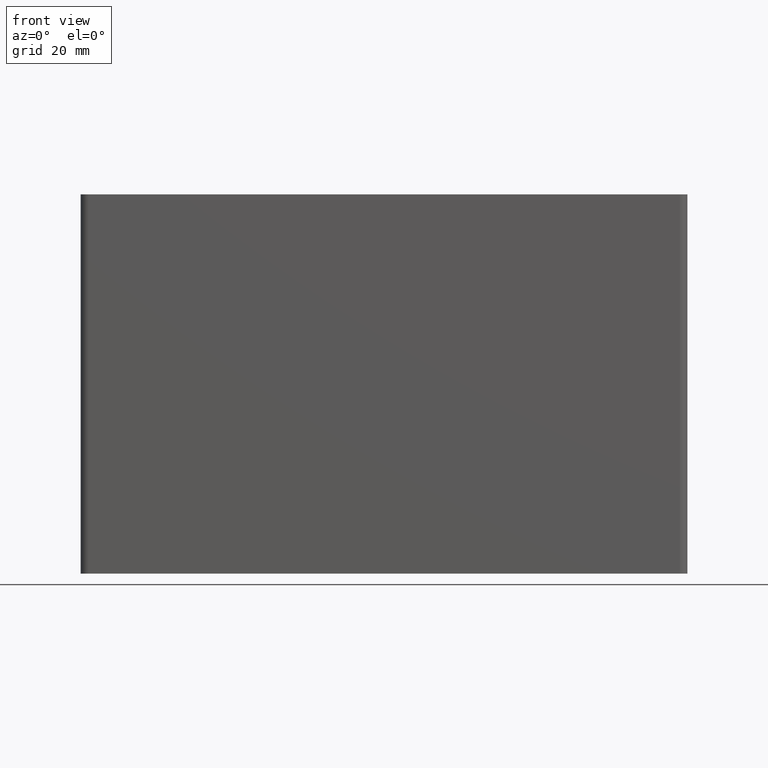
[diagram: clean part render]
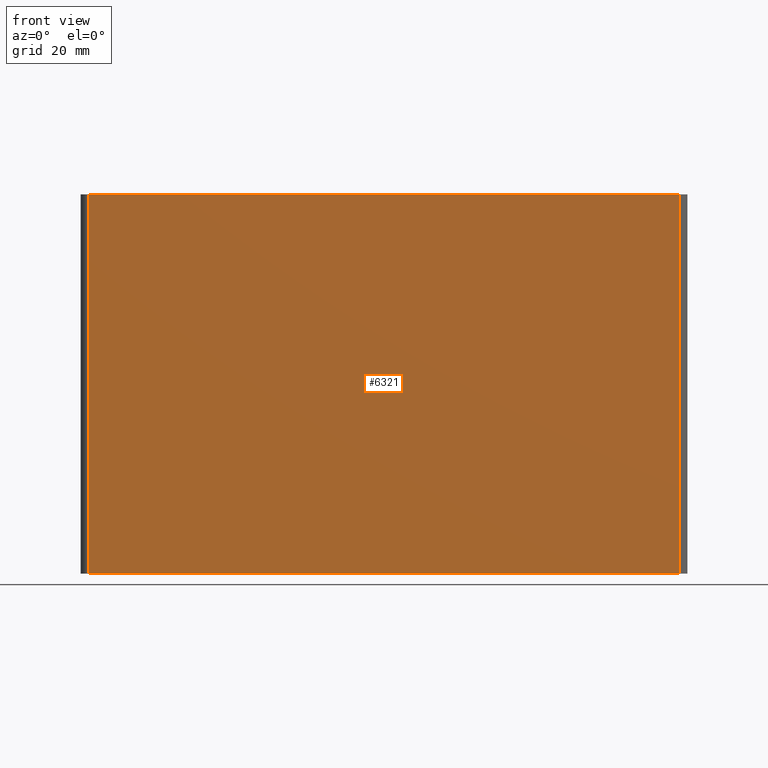
[diagram: same view with one face highlighted and labeled with its STEP entity id]
A machine part, front view. The second image highlights one B-rep face of the part: STEP entity #6321.
In plain terms, the highlighted planar face has unit normal (0, -1, 0).
Its self-contained STEP definition (entity closure, byte-faithful):
#129=PLANE('',#6813);
#379=FACE_OUTER_BOUND('',#705,.T.);
#705=EDGE_LOOP('',(#4737,#4738,#4739,#4740));
#1213=LINE('',#10012,#1857);
#1214=LINE('',#10015,#1858);
#1215=LINE('',#10017,#1859);
#1216=LINE('',#10018,#1860);
#1857=VECTOR('',#8101,100.);
#1858=VECTOR('',#8104,156.);
#1859=VECTOR('',#8105,156.);
#1860=VECTOR('',#8106,100.);
#2821=VERTEX_POINT('',#10008);
#2822=VERTEX_POINT('',#10010);
#2823=VERTEX_POINT('',#10014);
#2824=VERTEX_POINT('',#10016);
#3621=EDGE_CURVE('',#2821,#2822,#1213,.T.);
#3622=EDGE_CURVE('',#2823,#2821,#1214,.T.);
#3623=EDGE_CURVE('',#2824,#2822,#1215,.T.);
#3624=EDGE_CURVE('',#2823,#2824,#1216,.T.);
#4737=ORIENTED_EDGE('',*,*,#3622,.T.);
#4738=ORIENTED_EDGE('',*,*,#3621,.T.);
#4739=ORIENTED_EDGE('',*,*,#3623,.F.);
#4740=ORIENTED_EDGE('',*,*,#3624,.F.);
#6321=ADVANCED_FACE('',(#379),#129,.T.);
#6813=AXIS2_PLACEMENT_3D('',#10013,#8102,#8103);
#8101=DIRECTION('',(0.,0.,1.));
#8102=DIRECTION('center_axis',(0.,-1.,0.));
#8103=DIRECTION('ref_axis',(1.,0.,0.));
#8104=DIRECTION('',(1.,0.,0.));
#8105=DIRECTION('',(1.,0.,0.));
#8106=DIRECTION('',(0.,0.,1.));
#10008=CARTESIAN_POINT('',(78.,-20.,0.));
#10010=CARTESIAN_POINT('',(78.,-20.,100.));
#10012=CARTESIAN_POINT('',(78.,-20.,0.));
#10013=CARTESIAN_POINT('Origin',(-78.,-20.,0.));
#10014=CARTESIAN_POINT('',(-78.,-20.,0.));
#10015=CARTESIAN_POINT('',(-78.,-20.,0.));
#10016=CARTESIAN_POINT('',(-78.,-20.,100.));
#10017=CARTESIAN_POINT('',(-78.,-20.,100.));
#10018=CARTESIAN_POINT('',(-78.,-20.,0.));